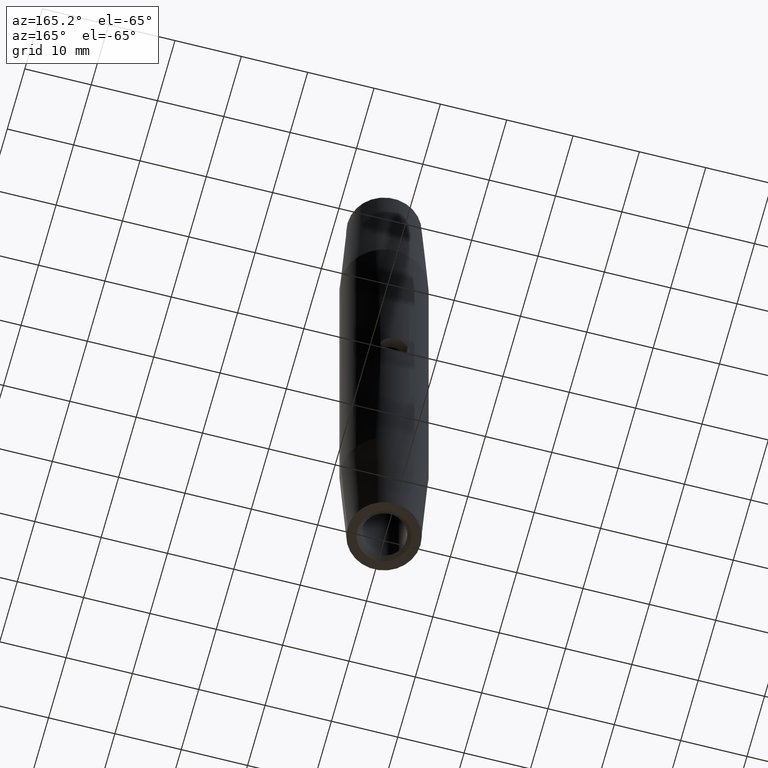
[diagram: clean part render]
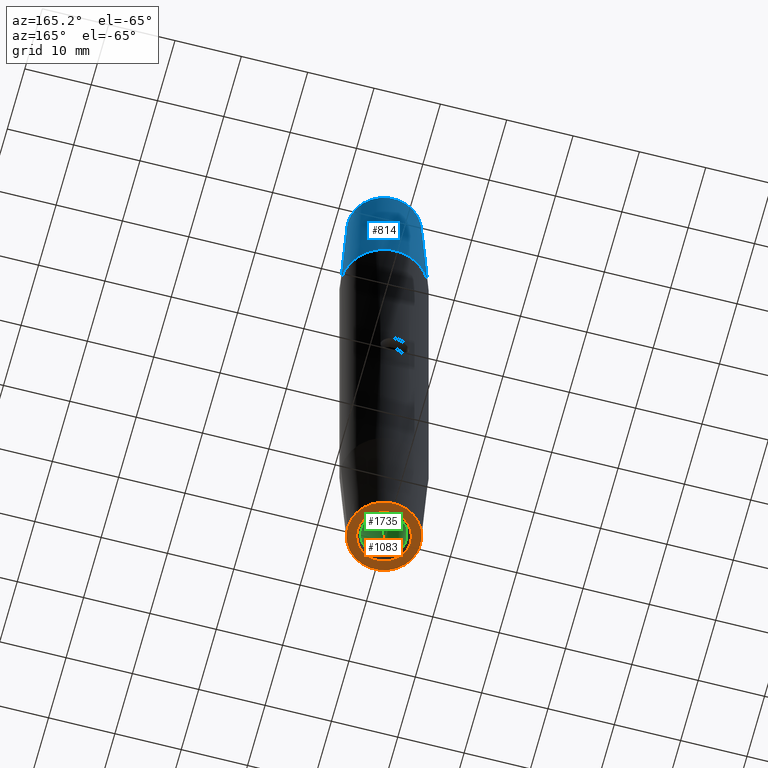
[diagram: same view with three faces highlighted in distinct colors, each labeled with its STEP entity id]
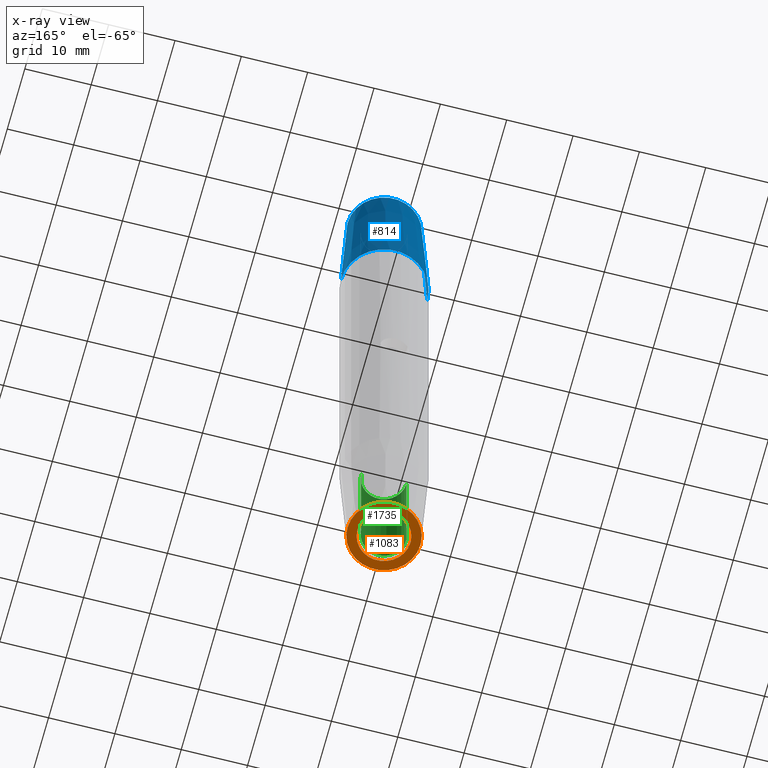
[diagram: x-ray of the same camera — body ghosted, the three highlighted faces saturated]
A machine part, auxiliary view with three faces highlighted in distinct colors.
The next image is the same camera in x-ray (body ghosted, the three faces saturated) — at least one of them is partly hidden behind the body in this view.
Their STEP definitions:

[orange] entity #1083 — the highlighted planar face has unit normal (0, -0, 1).
#242 = CARTESIAN_POINT ( 'NONE',  ( 0.0000000000000000000, 3.000000000000000000, -52.50000000000000700 ) ) ;
#494 = AXIS2_PLACEMENT_3D ( 'NONE', #6452, #4330, #8312 ) ;
#1083 = ADVANCED_FACE ( 'NONE', ( #10067, #11163 ), #8286, .F. ) ;
#1124 = EDGE_LOOP ( 'NONE', ( #12393, #5015 ) ) ;
#1207 = EDGE_LOOP ( 'NONE', ( #3169, #8454 ) ) ;
#1337 = VERTEX_POINT ( 'NONE', #7833 ) ;
#1523 = EDGE_CURVE ( 'NONE', #1337, #12534, #3717, .T. ) ;
#2089 = CARTESIAN_POINT ( 'NONE',  ( -3.999999999999982700, 0.0000000000000000000, -52.50000000000000700 ) ) ;
#2834 = DIRECTION ( 'NONE',  ( -0.0000000000000000000, -0.0000000000000000000, 1.000000000000000000 ) ) ;
#3110 = CIRCLE ( 'NONE', #7605, 3.999999999999982700 ) ;
#3169 = ORIENTED_EDGE ( 'NONE', *, *, #6552, .T. ) ;
#3173 = DIRECTION ( 'NONE',  ( 1.000000000000000000, 0.0000000000000000000, 0.0000000000000000000 ) ) ;
#3281 = AXIS2_PLACEMENT_3D ( 'NONE', #242, #9457, #4220 ) ;
#3717 = CIRCLE ( 'NONE', #10829, 5.500000000000000000 ) ;
#3840 = EDGE_CURVE ( 'NONE', #9793, #6514, #4461, .T. ) ;
#3941 = CARTESIAN_POINT ( 'NONE',  ( 0.0000000000000000000, 0.0000000000000000000, -52.50000000000000000 ) ) ;
#4220 = DIRECTION ( 'NONE',  ( 1.000000000000000000, 0.0000000000000000000, 0.0000000000000000000 ) ) ;
#4330 = DIRECTION ( 'NONE',  ( -0.0000000000000000000, -0.0000000000000000000, 1.000000000000000000 ) ) ;
#4461 = CIRCLE ( 'NONE', #494, 3.999999999999982700 ) ;
#5015 = ORIENTED_EDGE ( 'NONE', *, *, #1523, .F. ) ;
#5178 = CIRCLE ( 'NONE', #9759, 5.500000000000000000 ) ;
#6452 = CARTESIAN_POINT ( 'NONE',  ( 0.0000000000000000000, 0.0000000000000000000, -52.50000000000000700 ) ) ;
#6514 = VERTEX_POINT ( 'NONE', #2089 ) ;
#6552 = EDGE_CURVE ( 'NONE', #6514, #9793, #3110, .T. ) ;
#6647 = CARTESIAN_POINT ( 'NONE',  ( 3.999999999999982700, 4.898587196589391100E-016, -52.50000000000000700 ) ) ;
#6886 = CARTESIAN_POINT ( 'NONE',  ( 0.0000000000000000000, 0.0000000000000000000, -52.50000000000000000 ) ) ;
#7033 = DIRECTION ( 'NONE',  ( -0.0000000000000000000, -0.0000000000000000000, 1.000000000000000000 ) ) ;
#7605 = AXIS2_PLACEMENT_3D ( 'NONE', #10232, #11173, #3173 ) ;
#7833 = CARTESIAN_POINT ( 'NONE',  ( -5.500000000000000000, 7.347880794884114800E-016, -52.50000000000000000 ) ) ;
#8286 = PLANE ( 'NONE',  #3281 ) ;
#8312 = DIRECTION ( 'NONE',  ( 1.000000000000000000, 0.0000000000000000000, 0.0000000000000000000 ) ) ;
#8454 = ORIENTED_EDGE ( 'NONE', *, *, #3840, .T. ) ;
#9090 = DIRECTION ( 'NONE',  ( 1.000000000000000000, 0.0000000000000000000, 0.0000000000000000000 ) ) ;
#9457 = DIRECTION ( 'NONE',  ( 0.0000000000000000000, -0.0000000000000000000, 1.000000000000000000 ) ) ;
#9759 = AXIS2_PLACEMENT_3D ( 'NONE', #6886, #2834, #10932 ) ;
#9793 = VERTEX_POINT ( 'NONE', #6647 ) ;
#10067 = FACE_BOUND ( 'NONE', #1207, .T. ) ;
#10232 = CARTESIAN_POINT ( 'NONE',  ( 0.0000000000000000000, 0.0000000000000000000, -52.50000000000000700 ) ) ;
#10829 = AXIS2_PLACEMENT_3D ( 'NONE', #3941, #7033, #9090 ) ;
#10932 = DIRECTION ( 'NONE',  ( 1.000000000000000000, 0.0000000000000000000, 0.0000000000000000000 ) ) ;
#11163 = FACE_OUTER_BOUND ( 'NONE', #1124, .T. ) ;
#11173 = DIRECTION ( 'NONE',  ( -0.0000000000000000000, -0.0000000000000000000, 1.000000000000000000 ) ) ;
#12254 = CARTESIAN_POINT ( 'NONE',  ( 5.500000000000000000, 0.0000000000000000000, -52.50000000000000000 ) ) ;
#12393 = ORIENTED_EDGE ( 'NONE', *, *, #12853, .F. ) ;
#12534 = VERTEX_POINT ( 'NONE', #12254 ) ;
#12853 = EDGE_CURVE ( 'NONE', #12534, #1337, #5178, .T. ) ;

[blue] entity #814 — the highlighted conical surface has half-angle 2.862 deg.
#358 = CIRCLE ( 'NONE', #417, 5.500000000000000000 ) ;
#417 = AXIS2_PLACEMENT_3D ( 'NONE', #3006, #6975, #7995 ) ;
#463 = CARTESIAN_POINT ( 'NONE',  ( 5.500000000000000000, 7.347880794884114800E-016, 52.50000000000000000 ) ) ;
#763 = EDGE_LOOP ( 'NONE', ( #5978, #10796, #8980, #2791 ) ) ;
#769 = DIRECTION ( 'NONE',  ( 1.000000000000000000, 0.0000000000000000000, 0.0000000000000000000 ) ) ;
#814 = ADVANCED_FACE ( 'NONE', ( #4966 ), #7346, .T. ) ;
#920 = DIRECTION ( 'NONE',  ( 0.0000000000000000000, 0.0000000000000000000, -1.000000000000000000 ) ) ;
#991 = LINE ( 'NONE', #3313, #4302 ) ;
#2097 = EDGE_CURVE ( 'NONE', #9774, #12753, #4647, .T. ) ;
#2791 = ORIENTED_EDGE ( 'NONE', *, *, #5439, .F. ) ;
#2816 = VERTEX_POINT ( 'NONE', #3350 ) ;
#3006 = CARTESIAN_POINT ( 'NONE',  ( 0.0000000000000000000, 0.0000000000000000000, 52.50000000000000000 ) ) ;
#3313 = CARTESIAN_POINT ( 'NONE',  ( -6.499999999999992000, 0.0000000000000000000, 32.50000000000000000 ) ) ;
#3350 = CARTESIAN_POINT ( 'NONE',  ( -6.499999999999992000, 7.960204194457785600E-016, 32.50000000000000000 ) ) ;
#3976 = EDGE_CURVE ( 'NONE', #12753, #2816, #12846, .T. ) ;
#3998 = DIRECTION ( 'NONE',  ( -1.000000000000000000, 0.0000000000000000000, 0.0000000000000000000 ) ) ;
#4302 = VECTOR ( 'NONE', #4320, 1000.000000000000200 ) ;
#4320 = DIRECTION ( 'NONE',  ( -0.04993761694389185800, 0.0000000000000000000, -0.9987523388778446500 ) ) ;
#4647 = LINE ( 'NONE', #5950, #7809 ) ;
#4966 = FACE_OUTER_BOUND ( 'NONE', #763, .T. ) ;
#5439 = EDGE_CURVE ( 'NONE', #8707, #2816, #991, .T. ) ;
#5950 = CARTESIAN_POINT ( 'NONE',  ( 6.499999999999992000, 7.960204194457785600E-016, 32.50000000000000000 ) ) ;
#5978 = ORIENTED_EDGE ( 'NONE', *, *, #7231, .F. ) ;
#6975 = DIRECTION ( 'NONE',  ( -0.0000000000000000000, -0.0000000000000000000, 1.000000000000000000 ) ) ;
#7231 = EDGE_CURVE ( 'NONE', #9774, #8707, #358, .T. ) ;
#7346 = CONICAL_SURFACE ( 'NONE', #12332, 6.499999999999992000, 0.04995839572194239700 ) ;
#7809 = VECTOR ( 'NONE', #13017, 1000.000000000000200 ) ;
#7995 = DIRECTION ( 'NONE',  ( 1.000000000000000000, 0.0000000000000000000, 0.0000000000000000000 ) ) ;
#8707 = VERTEX_POINT ( 'NONE', #12662 ) ;
#8727 = CARTESIAN_POINT ( 'NONE',  ( 6.499999999999992000, 0.0000000000000000000, 32.50000000000000000 ) ) ;
#8980 = ORIENTED_EDGE ( 'NONE', *, *, #3976, .T. ) ;
#9774 = VERTEX_POINT ( 'NONE', #463 ) ;
#10510 = AXIS2_PLACEMENT_3D ( 'NONE', #12842, #10887, #769 ) ;
#10796 = ORIENTED_EDGE ( 'NONE', *, *, #2097, .T. ) ;
#10887 = DIRECTION ( 'NONE',  ( -0.0000000000000000000, -0.0000000000000000000, 1.000000000000000000 ) ) ;
#12332 = AXIS2_PLACEMENT_3D ( 'NONE', #12918, #920, #3998 ) ;
#12662 = CARTESIAN_POINT ( 'NONE',  ( -5.500000000000000000, 0.0000000000000000000, 52.50000000000000000 ) ) ;
#12753 = VERTEX_POINT ( 'NONE', #8727 ) ;
#12842 = CARTESIAN_POINT ( 'NONE',  ( 0.0000000000000000000, 0.0000000000000000000, 32.50000000000000000 ) ) ;
#12846 = CIRCLE ( 'NONE', #10510, 6.499999999999992000 ) ;
#12918 = CARTESIAN_POINT ( 'NONE',  ( 0.0000000000000000000, 0.0000000000000000000, 32.50000000000000000 ) ) ;
#13017 = DIRECTION ( 'NONE',  ( 0.04993761694389185800, 6.115594274738380000E-018, -0.9987523388778446500 ) ) ;

[green] entity #1735 — the highlighted cylindrical surface (edge-blend (fillet) strip) has radius 3.4 mm, axis along (-0, -0, -1).
#68 = AXIS2_PLACEMENT_3D ( 'NONE', #9485, #3408, #12325 ) ;
#139 = VERTEX_POINT ( 'NONE', #8075 ) ;
#732 = DIRECTION ( 'NONE',  ( -0.0000000000000000000, -0.0000000000000000000, -1.000000000000000000 ) ) ;
#893 = ORIENTED_EDGE ( 'NONE', *, *, #6754, .T. ) ;
#1021 = EDGE_LOOP ( 'NONE', ( #8628, #893, #2477, #6602 ) ) ;
#1539 = CARTESIAN_POINT ( 'NONE',  ( -3.399999999999995000, 0.0000000000000000000, -32.50000000000000000 ) ) ;
#1558 = DIRECTION ( 'NONE',  ( -1.000000000000000000, 0.0000000000000000000, 0.0000000000000000000 ) ) ;
#1624 = CARTESIAN_POINT ( 'NONE',  ( 3.399999999999996400, 4.163799117100996600E-016, -52.50000000000000700 ) ) ;
#1735 = ADVANCED_FACE ( 'NONE', ( #4183 ), #9115, .F. ) ;
#1874 = CARTESIAN_POINT ( 'NONE',  ( -3.399999999999996400, 0.0000000000000000000, -51.90000000000000600 ) ) ;
#2237 = CARTESIAN_POINT ( 'NONE',  ( -3.399999999999996400, 0.0000000000000000000, -52.50000000000000700 ) ) ;
#2477 = ORIENTED_EDGE ( 'NONE', *, *, #3858, .T. ) ;
#3408 = DIRECTION ( 'NONE',  ( -0.0000000000000000000, -0.0000000000000000000, -1.000000000000000000 ) ) ;
#3858 = EDGE_CURVE ( 'NONE', #8393, #7724, #12376, .T. ) ;
#4016 = VECTOR ( 'NONE', #5664, 1000.000000000000000 ) ;
#4083 = DIRECTION ( 'NONE',  ( -0.0000000000000000000, -0.0000000000000000000, -1.000000000000000000 ) ) ;
#4183 = FACE_OUTER_BOUND ( 'NONE', #1021, .T. ) ;
#4676 = CARTESIAN_POINT ( 'NONE',  ( 0.0000000000000000000, 0.0000000000000000000, -52.50000000000000700 ) ) ;
#5664 = DIRECTION ( 'NONE',  ( -0.0000000000000000000, -0.0000000000000000000, -1.000000000000000000 ) ) ;
#6064 = DIRECTION ( 'NONE',  ( -0.0000000000000000000, -0.0000000000000000000, -1.000000000000000000 ) ) ;
#6234 = CARTESIAN_POINT ( 'NONE',  ( 3.399999999999996400, 4.531193156845194400E-016, -51.90000000000000600 ) ) ;
#6602 = ORIENTED_EDGE ( 'NONE', *, *, #9983, .F. ) ;
#6754 = EDGE_CURVE ( 'NONE', #139, #8393, #11465, .T. ) ;
#7170 = AXIS2_PLACEMENT_3D ( 'NONE', #4676, #732, #1558 ) ;
#7279 = LINE ( 'NONE', #2237, #8718 ) ;
#7724 = VERTEX_POINT ( 'NONE', #1874 ) ;
#8075 = CARTESIAN_POINT ( 'NONE',  ( 3.399999999999995000, 4.163799117100995100E-016, -32.50000000000000000 ) ) ;
#8393 = VERTEX_POINT ( 'NONE', #6234 ) ;
#8617 = VERTEX_POINT ( 'NONE', #1539 ) ;
#8628 = ORIENTED_EDGE ( 'NONE', *, *, #9960, .F. ) ;
#8718 = VECTOR ( 'NONE', #6064, 1000.000000000000000 ) ;
#9115 = CYLINDRICAL_SURFACE ( 'NONE', #7170, 3.399999999999996400 ) ;
#9485 = CARTESIAN_POINT ( 'NONE',  ( 0.0000000000000000000, 0.0000000000000000000, -51.90000000000000600 ) ) ;
#9679 = CIRCLE ( 'NONE', #12997, 3.399999999999995000 ) ;
#9960 = EDGE_CURVE ( 'NONE', #139, #8617, #9679, .T. ) ;
#9983 = EDGE_CURVE ( 'NONE', #8617, #7724, #7279, .T. ) ;
#10256 = DIRECTION ( 'NONE',  ( -1.000000000000000000, 0.0000000000000000000, 0.0000000000000000000 ) ) ;
#11281 = CARTESIAN_POINT ( 'NONE',  ( 0.0000000000000000000, 0.0000000000000000000, -32.50000000000000000 ) ) ;
#11465 = LINE ( 'NONE', #1624, #4016 ) ;
#12325 = DIRECTION ( 'NONE',  ( -1.000000000000000000, 0.0000000000000000000, 0.0000000000000000000 ) ) ;
#12376 = CIRCLE ( 'NONE', #68, 3.399999999999996400 ) ;
#12997 = AXIS2_PLACEMENT_3D ( 'NONE', #11281, #4083, #10256 ) ;